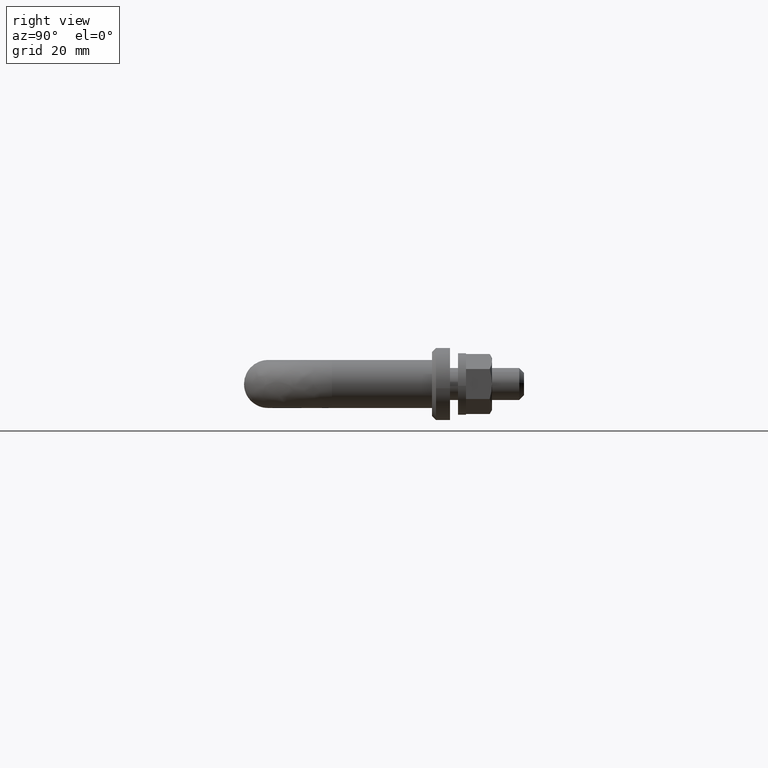
[diagram: clean part render]
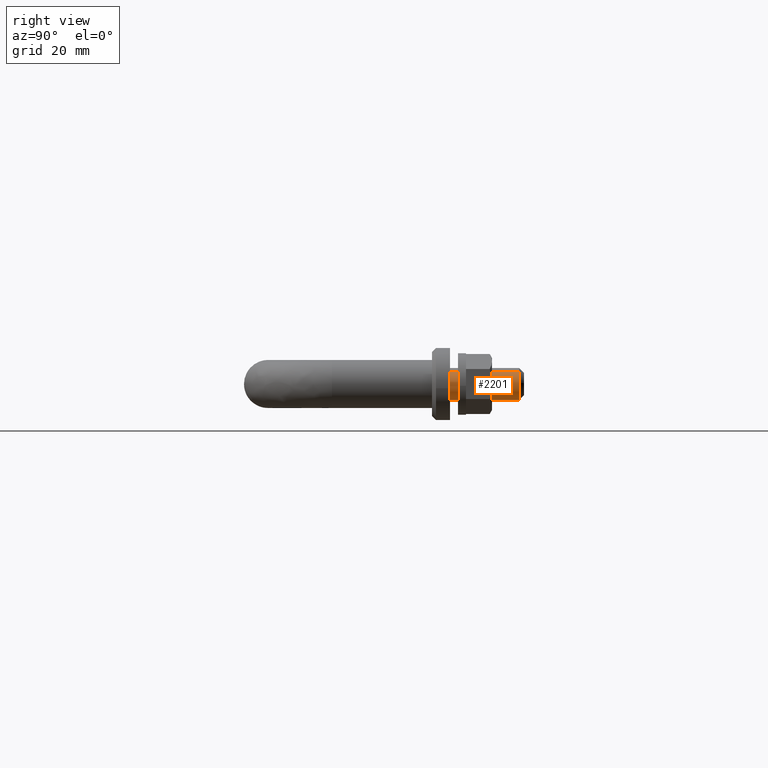
[diagram: same view with one face highlighted and labeled with its STEP entity id]
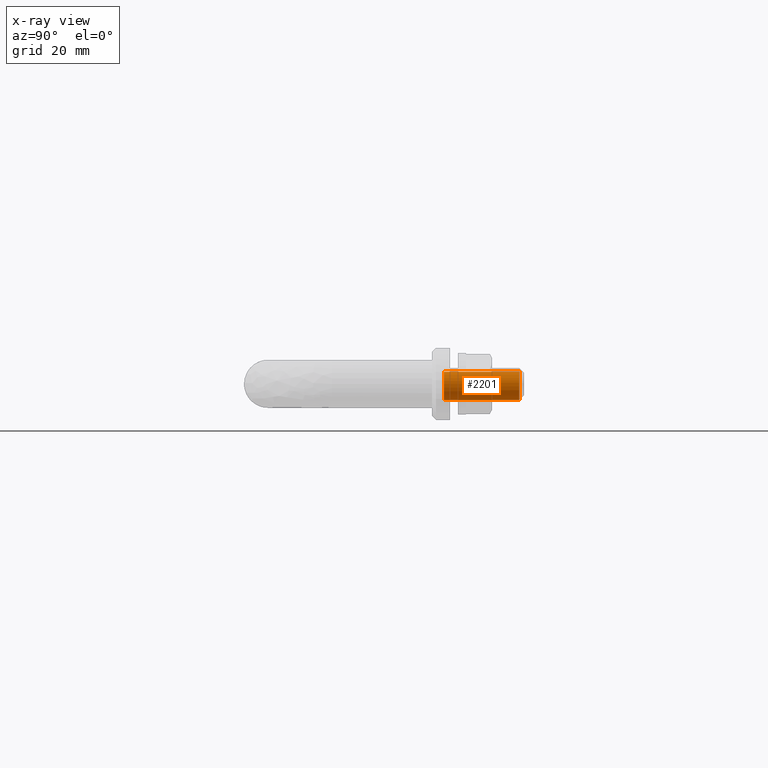
[diagram: x-ray of the same camera — body ghosted, the highlighted face saturated]
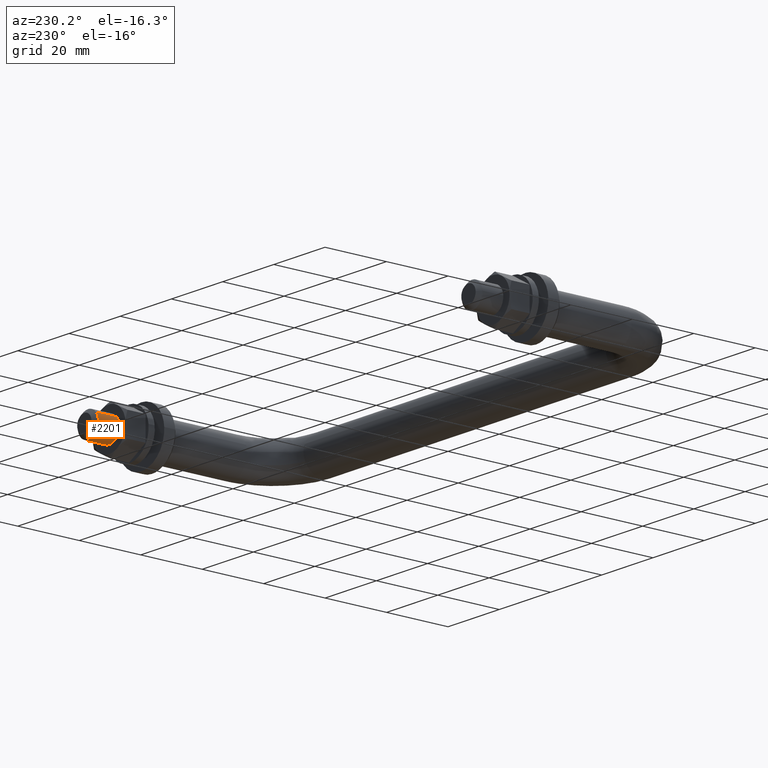
[diagram: same view with one face highlighted and labeled with its STEP entity id]
A machine part, right view. The second image highlights one B-rep face of the part: STEP entity #2201.
The next image is the same camera in x-ray: the body ghosted, the highlighted face saturated — about 0% of this face is hidden behind the body in this view.
A second angle (auxiliary view) of the same face is appended — the face is thin or edge-on in the first view.
In plain terms, the highlighted face is a freeform B-spline surface patch.
Its self-contained STEP definition (entity closure, byte-faithful):
#2052=CARTESIAN_POINT('',(146.958376137599910,19.270000000000000,2.597792193320733));
#2053=CARTESIAN_POINT('',(144.360583944279110,19.270000000000000,-0.443831669079390));
#2054=CARTESIAN_POINT('',(147.402207806679290,19.270000000000000,-3.041623862400123));
#2055=CARTESIAN_POINT('',(150.443831669079370,19.270000000000000,-5.639416055720857));
#2056=CARTESIAN_POINT('',(153.041623862400090,19.270000000000000,-2.597792193320733));
#2057=CARTESIAN_POINT('',(155.639416055720910,19.270000000000000,0.443831669079390));
#2058=CARTESIAN_POINT('',(152.597792193320710,19.270000000000000,3.041623862400123));
#2059=CARTESIAN_POINT('',(146.958376137599910,-0.481749999999984,2.597792193320733));
#2060=CARTESIAN_POINT('',(144.360583944279110,-0.481749999999984,-0.443831669079390));
#2061=CARTESIAN_POINT('',(147.402207806679290,-0.481749999999984,-3.041623862400123));
#2062=CARTESIAN_POINT('',(150.443831669079370,-0.481749999999984,-5.639416055720857));
#2063=CARTESIAN_POINT('',(153.041623862400090,-0.481749999999984,-2.597792193320733));
#2064=CARTESIAN_POINT('',(155.639416055720910,-0.481749999999984,0.443831669079390));
#2065=CARTESIAN_POINT('',(152.597792193320710,-0.481749999999984,3.041623862400123));
#2073=(BOUNDED_SURFACE()B_SPLINE_SURFACE(2,1,((#2052,#2059),(#2053,#2060),(#2054,#2061),(#2055,#2062),(#2056,#2063),(#2057,#2064),(#2058,#2065)),.UNSPECIFIED.,.F.,.F.,.U.)B_SPLINE_SURFACE_WITH_KNOTS((3,2,2,3),(2,2),(0.0,6.627416997969516,13.254833995939030,19.882250993908549),(0.0,19.751749999999991),.UNSPECIFIED.)GEOMETRIC_REPRESENTATION_ITEM()RATIONAL_B_SPLINE_SURFACE(((1.0,1.0),(0.707106781186548,0.707106781186548),(1.0,1.0),(0.707106781186548,0.707106781186548),(1.0,1.0),(0.707106781186548,0.707106781186548),(1.0,1.0)))REPRESENTATION_ITEM('')SURFACE());
#2074=CARTESIAN_POINT('',(146.0,1.734723E-014,0.0));
#2075=VERTEX_POINT('',#2074);
#2076=CARTESIAN_POINT('',(146.958375000384190,6.282475E-014,2.597790861811063));
#2077=VERTEX_POINT('',#2076);
#2078=CARTESIAN_POINT('',(146.0,1.734723E-014,0.0));
#2079=CARTESIAN_POINT('',(145.999999999999970,1.734723E-014,1.475676913753813));
#2080=CARTESIAN_POINT('',(146.958375000384190,6.282475E-014,2.597790861811064));
#2088=(BOUNDED_CURVE()B_SPLINE_CURVE(2,(#2078,#2079,#2080),.UNSPECIFIED.,.F.,.U.)B_SPLINE_CURVE_WITH_KNOTS((3,3),(0.0,0.113143095194130),.UNSPECIFIED.)CURVE()GEOMETRIC_REPRESENTATION_ITEM()RATIONAL_B_SPLINE_CURVE((1.0,0.867444618648297,0.854871046342754))REPRESENTATION_ITEM(''));
#2089=EDGE_CURVE('',#2075,#2077,#2088,.T.);
#2090=ORIENTED_EDGE('',*,*,#2089,.T.);
#2091=CARTESIAN_POINT('',(146.958375014409310,18.800000000000001,2.597790878232357));
#2092=VERTEX_POINT('',#2091);
#2093=CARTESIAN_POINT('',(146.958375014409310,18.800000000000001,2.597790878232357));
#2094=CARTESIAN_POINT('',(146.958375000384190,6.282475E-014,2.597790861811063));
#2095=QUASI_UNIFORM_CURVE('',1,(#2093,#2094),.UNSPECIFIED.,.F.,.U.);
#2096=EDGE_CURVE('',#2092,#2077,#2095,.T.);
#2097=ORIENTED_EDGE('',*,*,#2096,.F.);
#2098=CARTESIAN_POINT('',(146.012330664951690,18.799999999707548,-0.313836385167372));
#2099=VERTEX_POINT('',#2098);
#2100=CARTESIAN_POINT('',(146.012330664951630,18.799999999707548,-0.313836385167372));
#2101=CARTESIAN_POINT('',(146.000000000000030,18.800000000000001,-0.157160430274086));
#2102=CARTESIAN_POINT('',(146.0,18.800000000000001,0.0));
#2103=CARTESIAN_POINT('',(146.0,18.799999999999997,1.475676926021116));
#2104=CARTESIAN_POINT('',(146.958375014409260,18.800000000000001,2.597790878232358));
#2112=(BOUNDED_CURVE()B_SPLINE_CURVE(2,(#2100,#2101,#2102,#2103,#2104),.UNSPECIFIED.,.F.,.U.)B_SPLINE_CURVE_WITH_KNOTS((3,2,3),(0.236331300440776,0.250000000000000,0.363143096010013),.UNSPECIFIED.)CURVE()GEOMETRIC_REPRESENTATION_ITEM()RATIONAL_B_SPLINE_CURVE((0.969723355771145,0.983986122356419,1.0,0.867444617692432,0.854871046161416))REPRESENTATION_ITEM(''));
#2113=EDGE_CURVE('',#2099,#2092,#2112,.T.);
#2114=ORIENTED_EDGE('',*,*,#2113,.F.);
#2115=CARTESIAN_POINT('',(150.0,18.800000000000001,-4.0));
#2116=VERTEX_POINT('',#2115);
#2117=CARTESIAN_POINT('',(150.0,18.800000000000001,-4.0));
#2118=CARTESIAN_POINT('',(146.302438037521090,18.800000000000008,-4.000000000000001));
#2119=CARTESIAN_POINT('',(146.012330664951630,18.799999999707548,-0.313836385167372));
#2127=(BOUNDED_CURVE()B_SPLINE_CURVE(2,(#2117,#2118,#2119),.UNSPECIFIED.,.F.,.U.)B_SPLINE_CURVE_WITH_KNOTS((3,3),(0.0,0.236331300440776),.UNSPECIFIED.)CURVE()GEOMETRIC_REPRESENTATION_ITEM()RATIONAL_B_SPLINE_CURVE((1.0,0.723120658830128,0.969723355771145))REPRESENTATION_ITEM(''));
#2128=EDGE_CURVE('',#2116,#2099,#2127,.T.);
#2129=ORIENTED_EDGE('',*,*,#2128,.F.);
#2130=CARTESIAN_POINT('',(153.987669335048310,18.799999999707541,0.313836385167374));
#2131=VERTEX_POINT('',#2130);
#2132=CARTESIAN_POINT('',(153.987669335048310,18.799999999707541,0.313836385167373));
#2133=CARTESIAN_POINT('',(153.999999999999970,18.800000000000004,0.157160430274087));
#2134=CARTESIAN_POINT('',(154.0,18.800000000000001,0.0));
#2135=CARTESIAN_POINT('',(153.999999999999970,18.800000000000008,-4.000000000000000));
#2136=CARTESIAN_POINT('',(150.0,18.800000000000001,-4.0));
#2144=(BOUNDED_CURVE()B_SPLINE_CURVE(2,(#2132,#2133,#2134,#2135,#2136),.UNSPECIFIED.,.F.,.U.)B_SPLINE_CURVE_WITH_KNOTS((3,2,3),(0.736331300440776,0.750000000000000,1.0),.UNSPECIFIED.)CURVE()GEOMETRIC_REPRESENTATION_ITEM()RATIONAL_B_SPLINE_CURVE((0.969723355771144,0.983986122356419,1.0,0.707106781186548,1.0))REPRESENTATION_ITEM(''));
#2145=EDGE_CURVE('',#2131,#2116,#2144,.T.);
#2146=ORIENTED_EDGE('',*,*,#2145,.F.);
#2147=CARTESIAN_POINT('',(152.597790075888890,18.799999999999830,3.041625670855222));
#2148=VERTEX_POINT('',#2147);
#2149=CARTESIAN_POINT('',(152.597790075888870,18.799999999999834,3.041625670855221));
#2150=CARTESIAN_POINT('',(153.857673918787730,18.800000000000001,1.965584731559994));
#2151=CARTESIAN_POINT('',(153.987669335048340,18.799999999707541,0.313836385167374));
#2159=(BOUNDED_CURVE()B_SPLINE_CURVE(2,(#2149,#2150,#2151),.UNSPECIFIED.,.F.,.U.)B_SPLINE_CURVE_WITH_KNOTS((3,3),(0.613143056146091,0.736331300440776),.UNSPECIFIED.)CURVE()GEOMETRIC_REPRESENTATION_ITEM()RATIONAL_B_SPLINE_CURVE((0.854871055021572,0.841181121975453,0.969723355771145))REPRESENTATION_ITEM(''));
#2160=EDGE_CURVE('',#2148,#2131,#2159,.T.);
#2161=ORIENTED_EDGE('',*,*,#2160,.F.);
#2162=CARTESIAN_POINT('',(152.597788749529290,1.799949E-014,3.041626803669158));
#2163=VERTEX_POINT('',#2162);
#2164=CARTESIAN_POINT('',(152.597790075888890,18.799999999999830,3.041625670855222));
#2165=CARTESIAN_POINT('',(152.597788749529290,1.799949E-014,3.041626803669158));
#2166=QUASI_UNIFORM_CURVE('',1,(#2164,#2165),.UNSPECIFIED.,.F.,.U.);
#2167=EDGE_CURVE('',#2148,#2163,#2166,.T.);
#2168=ORIENTED_EDGE('',*,*,#2167,.T.);
#2169=CARTESIAN_POINT('',(154.0,1.734723E-014,0.0));
#2170=VERTEX_POINT('',#2169);
#2171=CARTESIAN_POINT('',(152.597788749529260,1.799949E-014,3.041626803669157));
#2172=CARTESIAN_POINT('',(154.000000000000060,1.734723E-014,1.844028003404830));
#2173=CARTESIAN_POINT('',(154.0,1.734723E-014,0.0));
#2181=(BOUNDED_CURVE()B_SPLINE_CURVE(2,(#2171,#2172,#2173),.UNSPECIFIED.,.F.,.U.)B_SPLINE_CURVE_WITH_KNOTS((3,3),(0.363142990246802,0.500000000000000),.UNSPECIFIED.)CURVE()GEOMETRIC_REPRESENTATION_ITEM()RATIONAL_B_SPLINE_CURVE((0.854871069668414,0.839662039584807,1.0))REPRESENTATION_ITEM(''));
#2182=EDGE_CURVE('',#2163,#2170,#2181,.T.);
#2183=ORIENTED_EDGE('',*,*,#2182,.T.);
#2184=CARTESIAN_POINT('',(154.0,1.734723E-014,0.0));
#2185=CARTESIAN_POINT('',(153.999999999999970,1.734723E-014,-4.000000000000000));
#2186=CARTESIAN_POINT('',(150.0,1.734723E-014,-4.0));
#2187=CARTESIAN_POINT('',(146.000000000000090,1.734723E-014,-4.000000000000000));
#2188=CARTESIAN_POINT('',(146.0,1.734723E-014,0.0));
#2196=(BOUNDED_CURVE()B_SPLINE_CURVE(2,(#2184,#2185,#2186,#2187,#2188),.UNSPECIFIED.,.F.,.U.)B_SPLINE_CURVE_WITH_KNOTS((3,2,3),(0.500000000000000,0.750000000000000,1.0),.UNSPECIFIED.)CURVE()GEOMETRIC_REPRESENTATION_ITEM()RATIONAL_B_SPLINE_CURVE((1.0,0.707106781186548,1.0,0.707106781186548,1.0))REPRESENTATION_ITEM(''));
#2197=EDGE_CURVE('',#2170,#2075,#2196,.T.);
#2198=ORIENTED_EDGE('',*,*,#2197,.T.);
#2199=EDGE_LOOP('',(#2090,#2097,#2114,#2129,#2146,#2161,#2168,#2183,#2198));
#2200=FACE_OUTER_BOUND('',#2199,.T.);
#2201=ADVANCED_FACE('',(#2200),#2073,.T.);